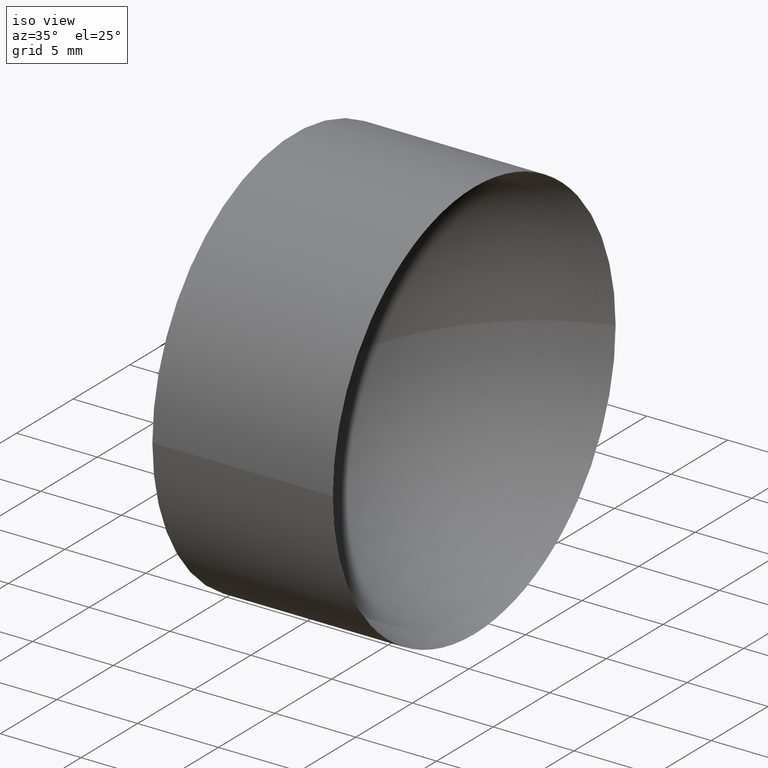
[diagram: clean part render]
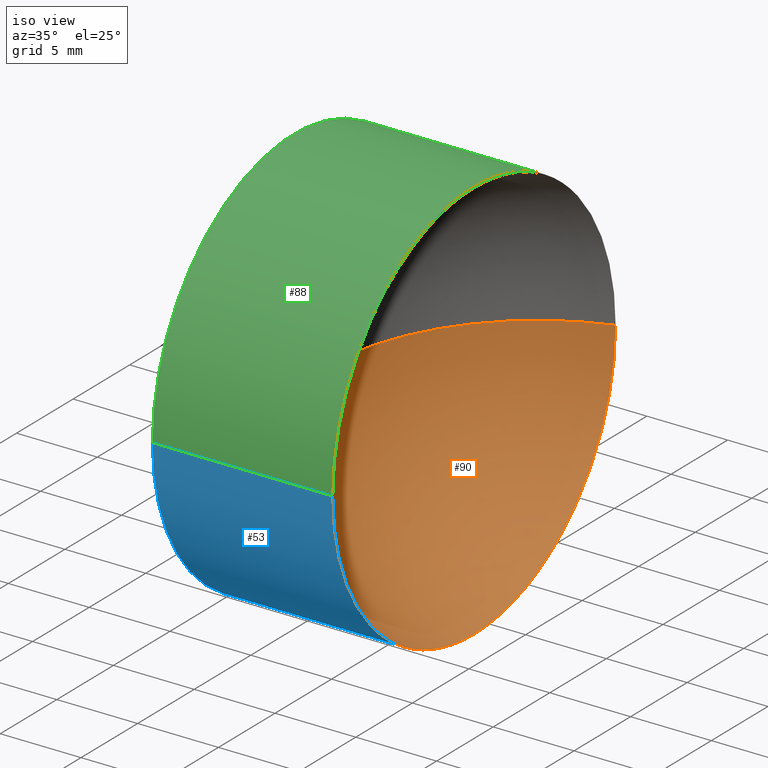
[diagram: same view with three faces highlighted in distinct colors, each labeled with its STEP entity id]
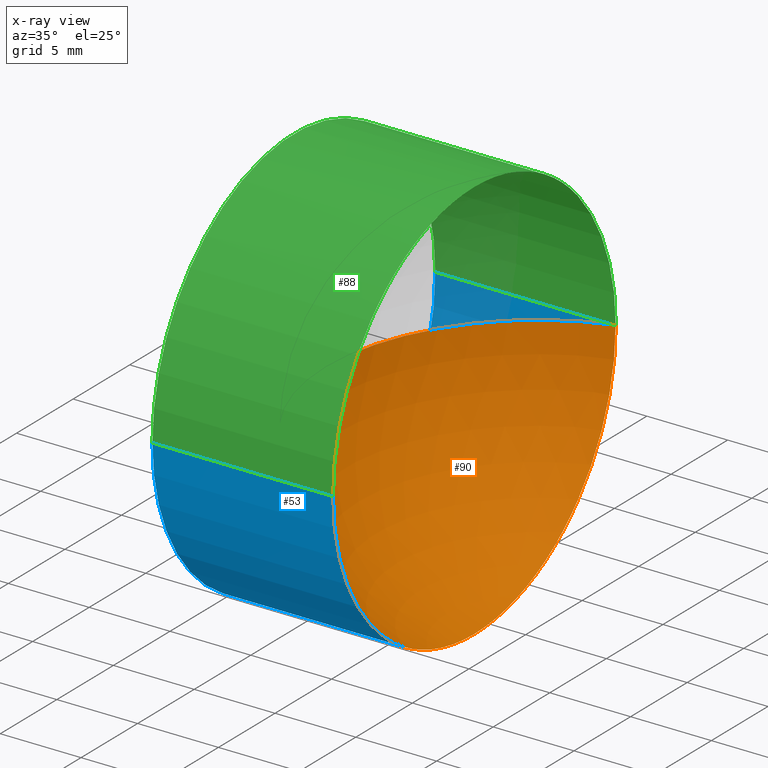
[diagram: x-ray of the same camera — body ghosted, the three highlighted faces saturated]
A machine part, iso view with three faces highlighted in distinct colors.
The next image is the same camera in x-ray (body ghosted, the three faces saturated) — at least one of them is partly hidden behind the body in this view.
Their STEP definitions:

[orange] entity #90 — the highlighted spherical surface has radius 13.1089 mm.
#10 = ORIENTED_EDGE ( 'NONE', *, *, #79, .F. ) ;
#11 = EDGE_CURVE ( 'NONE', #109, #22, #104, .T. ) ;
#13 = CARTESIAN_POINT ( 'NONE',  ( 68.51819015802109900, 20.07872591329309500, 0.0000000000000000000 ) ) ;
#14 = DIRECTION ( 'NONE',  ( -5.943490924618453600E-032, -1.224646799147353200E-016, 1.000000000000000000 ) ) ;
#19 = AXIS2_PLACEMENT_3D ( 'NONE', #137, #14, #72 ) ;
#22 = VERTEX_POINT ( 'NONE', #83 ) ;
#28 = EDGE_LOOP ( 'NONE', ( #10, #69, #31 ) ) ;
#31 = ORIENTED_EDGE ( 'NONE', *, *, #11, .F. ) ;
#60 = DIRECTION ( 'NONE',  ( -1.000000000000000000, 4.853228644174421400E-016, -0.0000000000000000000 ) ) ;
#69 = ORIENTED_EDGE ( 'NONE', *, *, #110, .T. ) ;
#72 = DIRECTION ( 'NONE',  ( 0.0000000000000000000, -1.000000000000000000, -1.224646799147353000E-016 ) ) ;
#75 = AXIS2_PLACEMENT_3D ( 'NONE', #138, #60, #152 ) ;
#79 = EDGE_CURVE ( 'NONE', #124, #109, #157, .T. ) ;
#80 = CARTESIAN_POINT ( 'NONE',  ( 72.46712028902548800, 32.57872591329309800, 0.0000000000000000000 ) ) ;
#83 = CARTESIAN_POINT ( 'NONE',  ( 59.35819015802113100, 32.57872591329310600, 0.0000000000000000000 ) ) ;
#84 = DIRECTION ( 'NONE',  ( 0.0000000000000000000, -1.000000000000000000, 0.0000000000000000000 ) ) ;
#90 = ADVANCED_FACE ( 'NONE', ( #158 ), #128, .F. ) ;
#94 = CIRCLE ( 'NONE', #19, 13.10893013100436900 ) ;
#104 = CIRCLE ( 'NONE', #121, 13.10893013100436600 ) ;
#105 = CARTESIAN_POINT ( 'NONE',  ( 68.51819015802109900, 45.07872591329309100, 1.530808498934190500E-015 ) ) ;
#109 = VERTEX_POINT ( 'NONE', #13 ) ;
#110 = EDGE_CURVE ( 'NONE', #124, #22, #94, .T. ) ;
#113 = DIRECTION ( 'NONE',  ( -1.000000000000000000, 0.0000000000000000000, 0.0000000000000000000 ) ) ;
#119 = CARTESIAN_POINT ( 'NONE',  ( 72.46712028902548800, 32.57872591329309800, 0.0000000000000000000 ) ) ;
#121 = AXIS2_PLACEMENT_3D ( 'NONE', #80, #125, #113 ) ;
#124 = VERTEX_POINT ( 'NONE', #105 ) ;
#125 = DIRECTION ( 'NONE',  ( 0.0000000000000000000, -0.0000000000000000000, -1.000000000000000000 ) ) ;
#128 = SPHERICAL_SURFACE ( 'NONE', #156, 13.10893013100436900 ) ;
#137 = CARTESIAN_POINT ( 'NONE',  ( 72.46712028902548800, 32.57872591329309800, 0.0000000000000000000 ) ) ;
#138 = CARTESIAN_POINT ( 'NONE',  ( 68.51819015802109900, 32.57872591329309100, 0.0000000000000000000 ) ) ;
#151 = DIRECTION ( 'NONE',  ( 0.0000000000000000000, 0.0000000000000000000, 1.000000000000000000 ) ) ;
#152 = DIRECTION ( 'NONE',  ( 0.0000000000000000000, -1.000000000000000000, 0.0000000000000000000 ) ) ;
#156 = AXIS2_PLACEMENT_3D ( 'NONE', #119, #151, #84 ) ;
#157 = CIRCLE ( 'NONE', #75, 12.50000000000000400 ) ;
#158 = FACE_OUTER_BOUND ( 'NONE', #28, .T. ) ;

[blue] entity #53 — the highlighted cylindrical surface (partial cylindrical patch) has radius 12.5 mm, axis along (-1, 0, -0).
#3 = FACE_OUTER_BOUND ( 'NONE', #143, .T. ) ;
#4 = ORIENTED_EDGE ( 'NONE', *, *, #79, .T. ) ;
#5 = ORIENTED_EDGE ( 'NONE', *, *, #67, .F. ) ;
#8 = CARTESIAN_POINT ( 'NONE',  ( 55.00739462442117400, 20.07872591329309500, 0.0000000000000000000 ) ) ;
#13 = CARTESIAN_POINT ( 'NONE',  ( 68.51819015802109900, 20.07872591329309500, 0.0000000000000000000 ) ) ;
#23 = EDGE_CURVE ( 'NONE', #46, #45, #111, .T. ) ;
#33 = VECTOR ( 'NONE', #164, 1000.000000000000000 ) ;
#35 = CARTESIAN_POINT ( 'NONE',  ( 57.35819015802111000, 32.57872591329309800, 0.0000000000000000000 ) ) ;
#43 = ORIENTED_EDGE ( 'NONE', *, *, #23, .F. ) ;
#45 = VERTEX_POINT ( 'NONE', #127 ) ;
#46 = VERTEX_POINT ( 'NONE', #161 ) ;
#48 = CARTESIAN_POINT ( 'NONE',  ( 55.00739462442118800, 45.07872591329309100, 1.530808498934191500E-015 ) ) ;
#53 = ADVANCED_FACE ( 'NONE', ( #3 ), #97, .T. ) ;
#60 = DIRECTION ( 'NONE',  ( -1.000000000000000000, 4.853228644174421400E-016, -0.0000000000000000000 ) ) ;
#63 = LINE ( 'NONE', #8, #160 ) ;
#67 = EDGE_CURVE ( 'NONE', #124, #46, #108, .T. ) ;
#70 = DIRECTION ( 'NONE',  ( -1.000000000000000000, 4.853228644174421400E-016, -0.0000000000000000000 ) ) ;
#75 = AXIS2_PLACEMENT_3D ( 'NONE', #138, #60, #152 ) ;
#76 = EDGE_CURVE ( 'NONE', #109, #45, #63, .T. ) ;
#79 = EDGE_CURVE ( 'NONE', #124, #109, #157, .T. ) ;
#81 = DIRECTION ( 'NONE',  ( -5.551115123125784700E-016, -1.000000000000000000, 0.0000000000000000000 ) ) ;
#82 = AXIS2_PLACEMENT_3D ( 'NONE', #35, #70, #81 ) ;
#96 = AXIS2_PLACEMENT_3D ( 'NONE', #123, #162, #159 ) ;
#97 = CYLINDRICAL_SURFACE ( 'NONE', #96, 12.50000000000000000 ) ;
#105 = CARTESIAN_POINT ( 'NONE',  ( 68.51819015802109900, 45.07872591329309100, 1.530808498934190500E-015 ) ) ;
#108 = LINE ( 'NONE', #48, #33 ) ;
#109 = VERTEX_POINT ( 'NONE', #13 ) ;
#111 = CIRCLE ( 'NONE', #82, 12.49999999999999600 ) ;
#123 = CARTESIAN_POINT ( 'NONE',  ( 55.00739462442118100, 32.57872591329309800, 0.0000000000000000000 ) ) ;
#124 = VERTEX_POINT ( 'NONE', #105 ) ;
#127 = CARTESIAN_POINT ( 'NONE',  ( 57.35819015802110200, 20.07872591329309800, 0.0000000000000000000 ) ) ;
#136 = DIRECTION ( 'NONE',  ( -1.000000000000000000, 4.853228644174421400E-016, -0.0000000000000000000 ) ) ;
#138 = CARTESIAN_POINT ( 'NONE',  ( 68.51819015802109900, 32.57872591329309100, 0.0000000000000000000 ) ) ;
#143 = EDGE_LOOP ( 'NONE', ( #5, #4, #147, #43 ) ) ;
#147 = ORIENTED_EDGE ( 'NONE', *, *, #76, .T. ) ;
#152 = DIRECTION ( 'NONE',  ( 0.0000000000000000000, -1.000000000000000000, 0.0000000000000000000 ) ) ;
#157 = CIRCLE ( 'NONE', #75, 12.50000000000000400 ) ;
#159 = DIRECTION ( 'NONE',  ( -5.551115123125782700E-016, -1.000000000000000000, 0.0000000000000000000 ) ) ;
#160 = VECTOR ( 'NONE', #136, 1000.000000000000000 ) ;
#161 = CARTESIAN_POINT ( 'NONE',  ( 57.35819015802111700, 45.07872591329309100, 1.530808498934191900E-015 ) ) ;
#162 = DIRECTION ( 'NONE',  ( -1.000000000000000000, 4.853228644174421400E-016, -0.0000000000000000000 ) ) ;
#164 = DIRECTION ( 'NONE',  ( -1.000000000000000000, 4.853228644174421400E-016, -0.0000000000000000000 ) ) ;

[green] entity #88 — the highlighted cylindrical surface (partial cylindrical patch) has radius 12.5 mm, axis along (-1, 0, -0).
#8 = CARTESIAN_POINT ( 'NONE',  ( 55.00739462442117400, 20.07872591329309500, 0.0000000000000000000 ) ) ;
#13 = CARTESIAN_POINT ( 'NONE',  ( 68.51819015802109900, 20.07872591329309500, 0.0000000000000000000 ) ) ;
#15 = ORIENTED_EDGE ( 'NONE', *, *, #95, .T. ) ;
#17 = CARTESIAN_POINT ( 'NONE',  ( 55.00739462442118100, 32.57872591329309800, 0.0000000000000000000 ) ) ;
#24 = ORIENTED_EDGE ( 'NONE', *, *, #67, .T. ) ;
#33 = VECTOR ( 'NONE', #164, 1000.000000000000000 ) ;
#36 = FACE_OUTER_BOUND ( 'NONE', #149, .T. ) ;
#45 = VERTEX_POINT ( 'NONE', #127 ) ;
#46 = VERTEX_POINT ( 'NONE', #161 ) ;
#48 = CARTESIAN_POINT ( 'NONE',  ( 55.00739462442118800, 45.07872591329309100, 1.530808498934191500E-015 ) ) ;
#50 = DIRECTION ( 'NONE',  ( -1.000000000000000000, 4.853228644174421400E-016, -0.0000000000000000000 ) ) ;
#57 = CIRCLE ( 'NONE', #126, 12.50000000000000400 ) ;
#63 = LINE ( 'NONE', #8, #160 ) ;
#67 = EDGE_CURVE ( 'NONE', #124, #46, #108, .T. ) ;
#73 = DIRECTION ( 'NONE',  ( -1.000000000000000000, 4.853228644174421400E-016, -0.0000000000000000000 ) ) ;
#76 = EDGE_CURVE ( 'NONE', #109, #45, #63, .T. ) ;
#86 = DIRECTION ( 'NONE',  ( -5.551115123125784700E-016, -1.000000000000000000, 0.0000000000000000000 ) ) ;
#88 = ADVANCED_FACE ( 'NONE', ( #36 ), #122, .T. ) ;
#95 = EDGE_CURVE ( 'NONE', #109, #124, #57, .T. ) ;
#98 = ORIENTED_EDGE ( 'NONE', *, *, #76, .F. ) ;
#103 = DIRECTION ( 'NONE',  ( 0.0000000000000000000, -1.000000000000000000, 0.0000000000000000000 ) ) ;
#105 = CARTESIAN_POINT ( 'NONE',  ( 68.51819015802109900, 45.07872591329309100, 1.530808498934190500E-015 ) ) ;
#106 = DIRECTION ( 'NONE',  ( -1.000000000000000000, 4.853228644174421400E-016, -0.0000000000000000000 ) ) ;
#108 = LINE ( 'NONE', #48, #33 ) ;
#109 = VERTEX_POINT ( 'NONE', #13 ) ;
#112 = ORIENTED_EDGE ( 'NONE', *, *, #144, .F. ) ;
#114 = CARTESIAN_POINT ( 'NONE',  ( 57.35819015802111000, 32.57872591329309800, 0.0000000000000000000 ) ) ;
#118 = DIRECTION ( 'NONE',  ( -5.551115123125782700E-016, -1.000000000000000000, 0.0000000000000000000 ) ) ;
#122 = CYLINDRICAL_SURFACE ( 'NONE', #166, 12.50000000000000000 ) ;
#124 = VERTEX_POINT ( 'NONE', #105 ) ;
#126 = AXIS2_PLACEMENT_3D ( 'NONE', #129, #106, #103 ) ;
#127 = CARTESIAN_POINT ( 'NONE',  ( 57.35819015802110200, 20.07872591329309800, 0.0000000000000000000 ) ) ;
#129 = CARTESIAN_POINT ( 'NONE',  ( 68.51819015802109900, 32.57872591329309100, 0.0000000000000000000 ) ) ;
#136 = DIRECTION ( 'NONE',  ( -1.000000000000000000, 4.853228644174421400E-016, -0.0000000000000000000 ) ) ;
#142 = AXIS2_PLACEMENT_3D ( 'NONE', #114, #50, #86 ) ;
#144 = EDGE_CURVE ( 'NONE', #45, #46, #145, .T. ) ;
#145 = CIRCLE ( 'NONE', #142, 12.49999999999999600 ) ;
#149 = EDGE_LOOP ( 'NONE', ( #15, #24, #112, #98 ) ) ;
#160 = VECTOR ( 'NONE', #136, 1000.000000000000000 ) ;
#161 = CARTESIAN_POINT ( 'NONE',  ( 57.35819015802111700, 45.07872591329309100, 1.530808498934191900E-015 ) ) ;
#164 = DIRECTION ( 'NONE',  ( -1.000000000000000000, 4.853228644174421400E-016, -0.0000000000000000000 ) ) ;
#166 = AXIS2_PLACEMENT_3D ( 'NONE', #17, #73, #118 ) ;